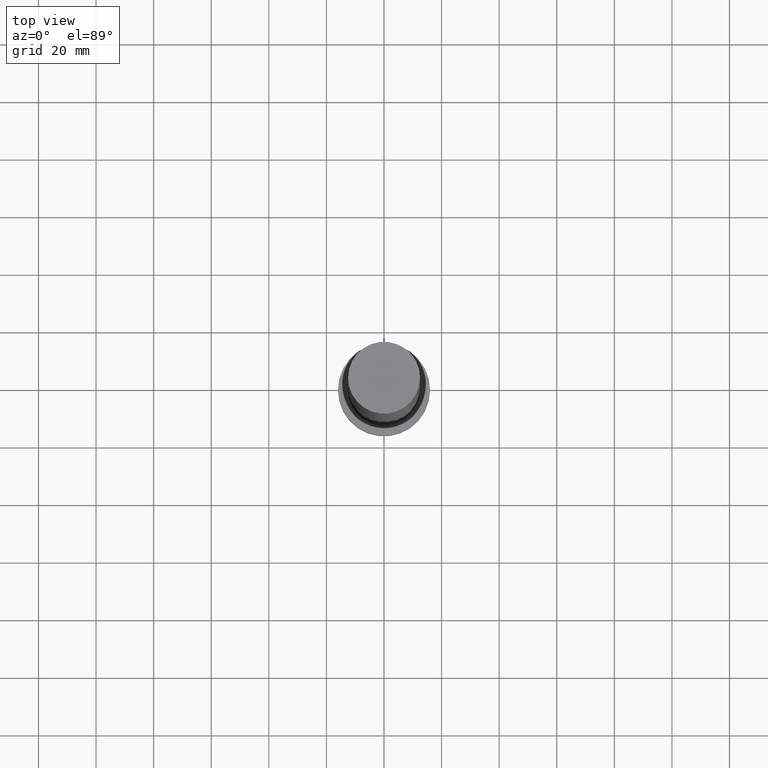
[diagram: clean part render]
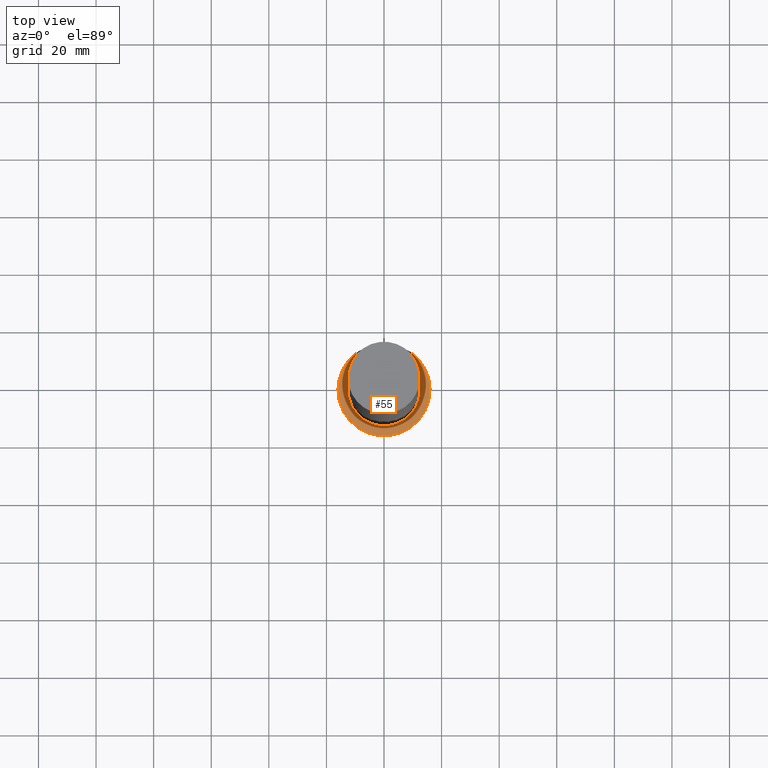
[diagram: same view with one face highlighted and labeled with its STEP entity id]
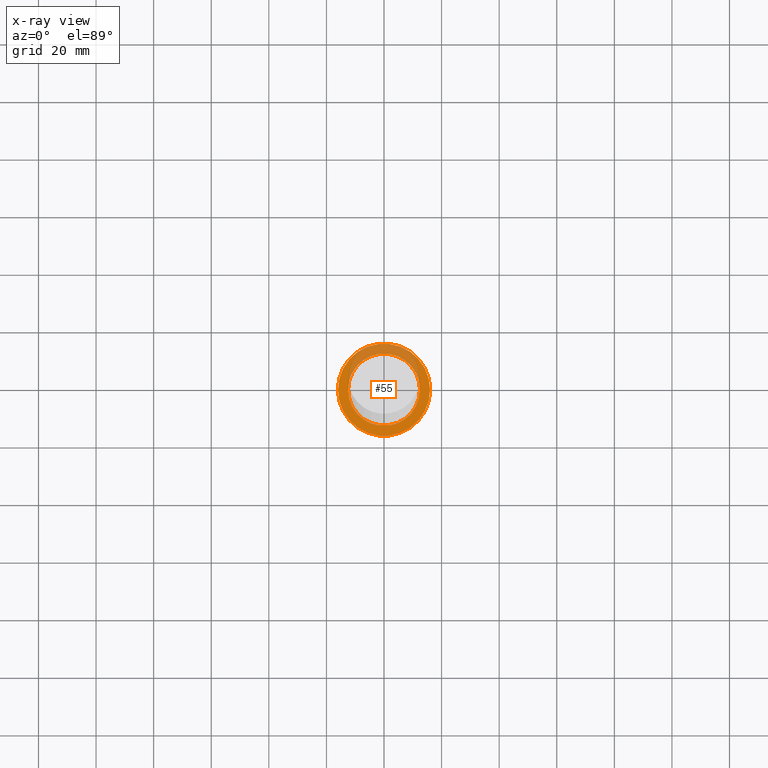
[diagram: x-ray of the same camera — body ghosted, the highlighted face saturated]
A machine part, top view. The second image highlights one B-rep face of the part: STEP entity #55.
The next image is the same camera in x-ray: the body ghosted, the highlighted face saturated — about 31% of this face is hidden behind the body in this view.
In plain terms, the highlighted planar face has unit normal (0, 0, 1).
Its self-contained STEP definition (entity closure, byte-faithful):
#1 = CIRCLE ( 'NONE', #127, 16.00000000000000000 ) ;
#3 = AXIS2_PLACEMENT_3D ( 'NONE', #100, #175, #154 ) ;
#6 = DIRECTION ( 'NONE',  ( 1.000000000000000000, 0.000000000000000000, 0.000000000000000000 ) ) ;
#16 = VERTEX_POINT ( 'NONE', #132 ) ;
#21 = EDGE_LOOP ( 'NONE', ( #117, #167 ) ) ;
#23 = CARTESIAN_POINT ( 'NONE',  ( -12.50000000000000000, 0.000000000000000000, 10.00000000000000000 ) ) ;
#25 = CIRCLE ( 'NONE', #108, 12.50000000000000000 ) ;
#32 = CARTESIAN_POINT ( 'NONE',  ( -16.00000000000000000, 0.000000000000000000, 10.00000000000000000 ) ) ;
#38 = DIRECTION ( 'NONE',  ( 0.000000000000000000, 0.000000000000000000, 1.000000000000000000 ) ) ;
#40 = ORIENTED_EDGE ( 'NONE', *, *, #110, .F. ) ;
#41 = CIRCLE ( 'NONE', #3, 12.50000000000000000 ) ;
#43 = DIRECTION ( 'NONE',  ( 0.000000000000000000, 0.000000000000000000, 1.000000000000000000 ) ) ;
#51 = DIRECTION ( 'NONE',  ( 1.000000000000000000, 0.000000000000000000, -0.000000000000000000 ) ) ;
#54 = VERTEX_POINT ( 'NONE', #32 ) ;
#55 = ADVANCED_FACE ( 'NONE', ( #113, #189 ), #251, .T. ) ;
#61 = CARTESIAN_POINT ( 'NONE',  ( 0.000000000000000000, 0.000000000000000000, 10.00000000000000000 ) ) ;
#63 = DIRECTION ( 'NONE',  ( 0.000000000000000000, 0.000000000000000000, 1.000000000000000000 ) ) ;
#64 = EDGE_CURVE ( 'NONE', #54, #16, #1, .T. ) ;
#69 = AXIS2_PLACEMENT_3D ( 'NONE', #126, #235, #51 ) ;
#80 = CIRCLE ( 'NONE', #212, 16.00000000000000000 ) ;
#100 = CARTESIAN_POINT ( 'NONE',  ( 0.000000000000000000, 0.000000000000000000, 10.00000000000000000 ) ) ;
#108 = AXIS2_PLACEMENT_3D ( 'NONE', #61, #63, #206 ) ;
#110 = EDGE_CURVE ( 'NONE', #200, #176, #25, .T. ) ;
#113 = FACE_BOUND ( 'NONE', #238, .T. ) ;
#117 = ORIENTED_EDGE ( 'NONE', *, *, #64, .T. ) ;
#126 = CARTESIAN_POINT ( 'NONE',  ( 0.000000000000000000, 0.000000000000000000, 10.00000000000000000 ) ) ;
#127 = AXIS2_PLACEMENT_3D ( 'NONE', #181, #43, #202 ) ;
#132 = CARTESIAN_POINT ( 'NONE',  ( 16.00000000000000000, 1.959434878635765131E-15, 10.00000000000000000 ) ) ;
#136 = EDGE_CURVE ( 'NONE', #16, #54, #80, .T. ) ;
#147 = CARTESIAN_POINT ( 'NONE',  ( 12.50000000000000000, 1.530808498934191521E-15, 10.00000000000000000 ) ) ;
#154 = DIRECTION ( 'NONE',  ( 1.000000000000000000, 0.000000000000000000, 0.000000000000000000 ) ) ;
#167 = ORIENTED_EDGE ( 'NONE', *, *, #136, .T. ) ;
#172 = ORIENTED_EDGE ( 'NONE', *, *, #230, .F. ) ;
#175 = DIRECTION ( 'NONE',  ( 0.000000000000000000, 0.000000000000000000, 1.000000000000000000 ) ) ;
#176 = VERTEX_POINT ( 'NONE', #147 ) ;
#181 = CARTESIAN_POINT ( 'NONE',  ( 0.000000000000000000, 0.000000000000000000, 10.00000000000000000 ) ) ;
#189 = FACE_OUTER_BOUND ( 'NONE', #21, .T. ) ;
#200 = VERTEX_POINT ( 'NONE', #23 ) ;
#202 = DIRECTION ( 'NONE',  ( 1.000000000000000000, 0.000000000000000000, 0.000000000000000000 ) ) ;
#206 = DIRECTION ( 'NONE',  ( 1.000000000000000000, 0.000000000000000000, 0.000000000000000000 ) ) ;
#212 = AXIS2_PLACEMENT_3D ( 'NONE', #222, #38, #6 ) ;
#222 = CARTESIAN_POINT ( 'NONE',  ( 0.000000000000000000, 0.000000000000000000, 10.00000000000000000 ) ) ;
#230 = EDGE_CURVE ( 'NONE', #176, #200, #41, .T. ) ;
#235 = DIRECTION ( 'NONE',  ( 0.000000000000000000, 0.000000000000000000, 1.000000000000000000 ) ) ;
#238 = EDGE_LOOP ( 'NONE', ( #40, #172 ) ) ;
#251 = PLANE ( 'NONE',  #69 ) ;